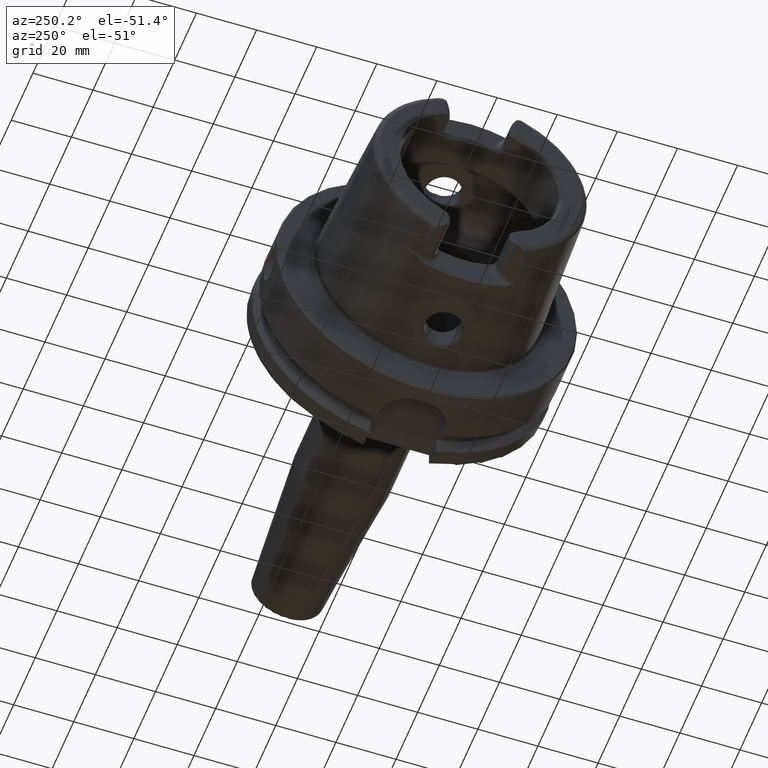
[diagram: clean part render]
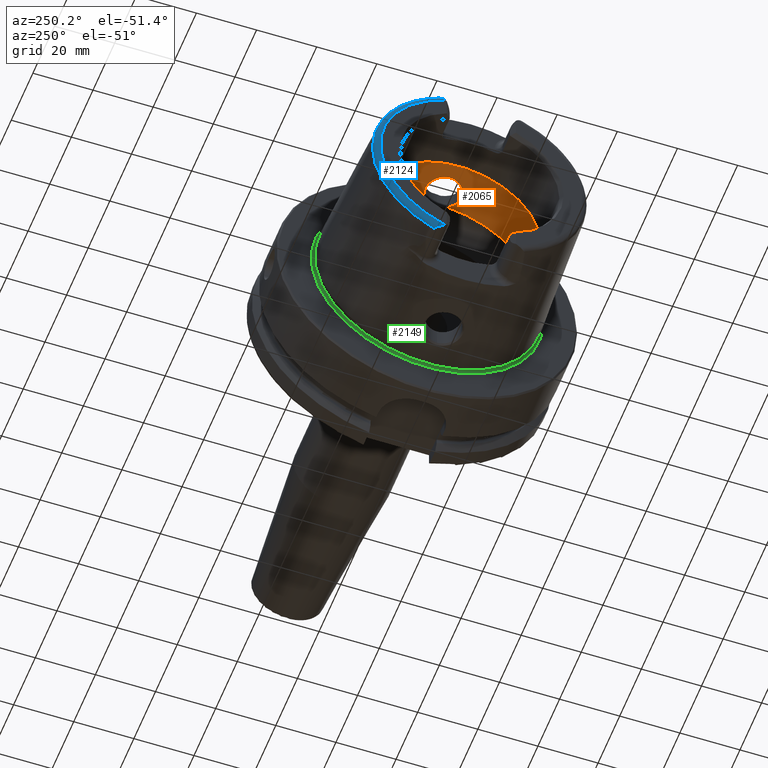
[diagram: same view with three faces highlighted in distinct colors, each labeled with its STEP entity id]
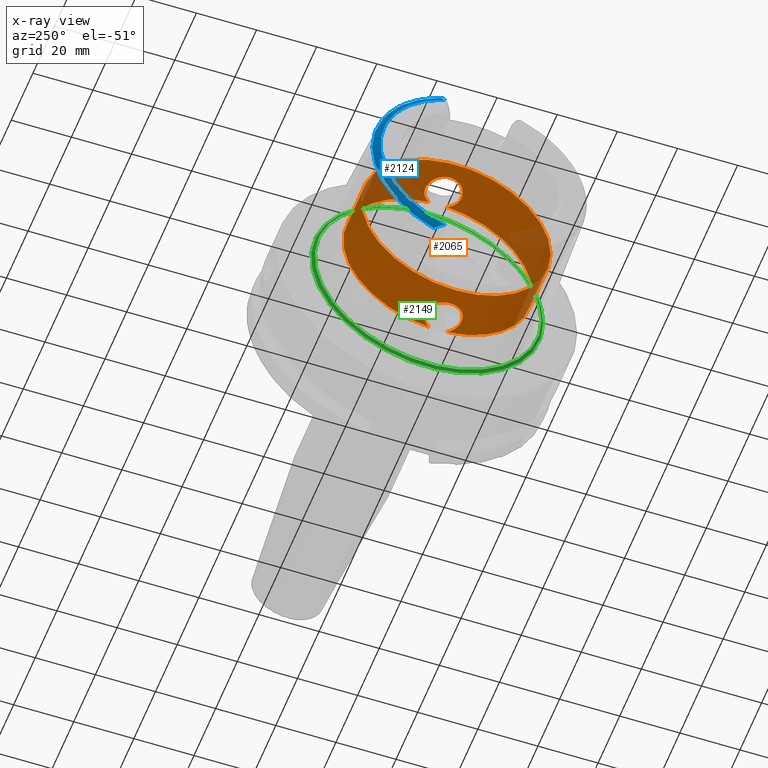
[diagram: x-ray of the same camera — body ghosted, the three highlighted faces saturated]
A machine part, auxiliary view with three faces highlighted in distinct colors.
The next image is the same camera in x-ray (body ghosted, the three faces saturated) — at least one of them is partly hidden behind the body in this view.
Their STEP definitions:

[orange] entity #2065 — the highlighted cylindrical surface (bore or boss wall) has radius 31.5 mm, axis along (-1, 0, 0).
#49=B_SPLINE_CURVE_WITH_KNOTS('',3,(#3687,#3688,#3689,#3690,#3691,#3692,
#3693,#3694,#3695,#3696,#3697,#3698,#3699,#3700,#3701,#3702,#3703,#3704,
#3705,#3706,#3707,#3708,#3709,#3710,#3711,#3712,#3713,#3714,#3715,#3716,
#3717),.UNSPECIFIED.,.F.,.F.,(4,2,2,2,2,2,2,2,2,2,2,3,2,2,4),(-2.42966289251045,
-2.26609494287567,-2.03948128472637,-1.81286762657707,-1.58625396842777,
-1.35964031027847,-1.1330370617835,-0.906433813288535,-0.679830564793567,
-0.453227316298599,-0.226613658149299,0.,0.2266136581493,0.453227316298599,
0.616795265988555),.UNSPECIFIED.);
#54=B_SPLINE_CURVE_WITH_KNOTS('',3,(#3879,#3880,#3881,#3882,#3883,#3884,
#3885,#3886,#3887,#3888,#3889,#3890,#3891,#3892,#3893,#3894,#3895,#3896,
#3897,#3898,#3899,#3900,#3901,#3902,#3903,#3904,#3905,#3906,#3907,#3908,
#3909),.UNSPECIFIED.,.F.,.F.,(4,2,2,3,2,2,2,2,2,2,2,2,2,2,4),(-0.616795265933374,
-0.453227316298598,-0.226613658149299,0.,0.2266136581493,0.453227316298599,
0.679830564793567,0.906433813288535,1.1330370617835,1.35964031027847,1.58625396842777,
1.81286762657707,2.03948128472637,2.26609494287567,2.42966289256562),
 .UNSPECIFIED.);
#188=CYLINDRICAL_SURFACE('',#2268,31.5);
#251=FACE_OUTER_BOUND('',#383,.T.);
#383=EDGE_LOOP('',(#1561,#1562,#1563,#1564,#1565,#1566,#1567,#1568,#1569));
#516=LINE('',#3925,#624);
#624=VECTOR('',#2681,31.5);
#738=CIRCLE('',#2269,31.5);
#739=CIRCLE('',#2270,31.5);
#740=CIRCLE('',#2271,31.5);
#741=CIRCLE('',#2272,31.5);
#742=CIRCLE('',#2273,31.5);
#918=VERTEX_POINT('',#3675);
#919=VERTEX_POINT('',#3686);
#922=VERTEX_POINT('',#3866);
#924=VERTEX_POINT('',#3878);
#925=VERTEX_POINT('',#3922);
#926=VERTEX_POINT('',#3924);
#927=VERTEX_POINT('',#3926);
#1158=EDGE_CURVE('',#919,#918,#49,.T.);
#1164=EDGE_CURVE('',#924,#922,#54,.T.);
#1167=EDGE_CURVE('',#925,#922,#738,.T.);
#1168=EDGE_CURVE('',#925,#926,#516,.T.);
#1169=EDGE_CURVE('',#926,#927,#739,.T.);
#1170=EDGE_CURVE('',#927,#926,#740,.T.);
#1171=EDGE_CURVE('',#919,#925,#741,.T.);
#1172=EDGE_CURVE('',#924,#918,#742,.T.);
#1561=ORIENTED_EDGE('',*,*,#1164,.T.);
#1562=ORIENTED_EDGE('',*,*,#1167,.F.);
#1563=ORIENTED_EDGE('',*,*,#1168,.T.);
#1564=ORIENTED_EDGE('',*,*,#1169,.T.);
#1565=ORIENTED_EDGE('',*,*,#1170,.T.);
#1566=ORIENTED_EDGE('',*,*,#1168,.F.);
#1567=ORIENTED_EDGE('',*,*,#1171,.F.);
#1568=ORIENTED_EDGE('',*,*,#1158,.T.);
#1569=ORIENTED_EDGE('',*,*,#1172,.F.);
#2065=ADVANCED_FACE('',(#251),#188,.F.);
#2268=AXIS2_PLACEMENT_3D('',#3921,#2677,#2678);
#2269=AXIS2_PLACEMENT_3D('',#3923,#2679,#2680);
#2270=AXIS2_PLACEMENT_3D('',#3927,#2682,#2683);
#2271=AXIS2_PLACEMENT_3D('',#3928,#2684,#2685);
#2272=AXIS2_PLACEMENT_3D('',#3929,#2686,#2687);
#2273=AXIS2_PLACEMENT_3D('',#3930,#2688,#2689);
#2677=DIRECTION('center_axis',(-1.,0.,0.));
#2678=DIRECTION('ref_axis',(0.,1.,0.));
#2679=DIRECTION('center_axis',(-1.,0.,0.));
#2680=DIRECTION('ref_axis',(0.,0.,1.));
#2681=DIRECTION('',(-1.,0.,0.));
#2682=DIRECTION('center_axis',(-1.,0.,0.));
#2683=DIRECTION('ref_axis',(0.,0.,1.));
#2684=DIRECTION('center_axis',(-1.,0.,0.));
#2685=DIRECTION('ref_axis',(0.,0.,1.));
#2686=DIRECTION('center_axis',(-1.,0.,0.));
#2687=DIRECTION('ref_axis',(0.,0.,1.));
#2688=DIRECTION('center_axis',(-1.,0.,0.));
#2689=DIRECTION('ref_axis',(0.,0.,1.));
#3675=CARTESIAN_POINT('',(-9.74679434480896,2.89893607109041,-31.3663222207471));
#3686=CARTESIAN_POINT('',(-9.74679434480896,-2.89893607109041,-31.3663222207471));
#3687=CARTESIAN_POINT('Ctrl Pts',(-9.74679434480898,-2.8989360710904,-31.3663222207471));
#3688=CARTESIAN_POINT('Ctrl Pts',(-10.0245557799842,-3.40227174537722,-31.3198029657389));
#3689=CARTESIAN_POINT('Ctrl Pts',(-10.3735944692601,-3.85887584349869,-31.2651415110221));
#3690=CARTESIAN_POINT('Ctrl Pts',(-11.289042660848,-4.77432403508655,-31.140708727458));
#3691=CARTESIAN_POINT('Ctrl Pts',(-11.9624834305428,-5.23577180141274,-31.0633803744766));
#3692=CARTESIAN_POINT('Ctrl Pts',(-13.4401908644727,-5.84865855662958,-30.9538382316308));
#3693=CARTESIAN_POINT('Ctrl Pts',(-14.2446211395023,-6.00000000000001,-30.9232921921325));
#3694=CARTESIAN_POINT('Ctrl Pts',(-15.7553788604977,-6.00000000000001,-30.9232921921325));
#3695=CARTESIAN_POINT('Ctrl Pts',(-16.5598091355273,-5.84865855662958,-30.9538382316308));
#3696=CARTESIAN_POINT('Ctrl Pts',(-18.0375165694572,-5.23577180141275,-31.0633803744766));
#3697=CARTESIAN_POINT('Ctrl Pts',(-18.710957339152,-4.77432403508655,-31.140708727458));
#3698=CARTESIAN_POINT('Ctrl Pts',(-19.7742996118461,-3.71098176239249,-31.2852440928545));
#3699=CARTESIAN_POINT('Ctrl Pts',(-20.2357665181958,-3.03753058698362,-31.3619556484746));
#3700=CARTESIAN_POINT('Ctrl Pts',(-20.8486671603361,-1.55978711209124,-31.4700797313679));
#3701=CARTESIAN_POINT('Ctrl Pts',(-21.,-0.755344161649895,-31.5));
#3702=CARTESIAN_POINT('Ctrl Pts',(-21.,0.755344161649892,-31.5));
#3703=CARTESIAN_POINT('Ctrl Pts',(-20.8486671603361,1.55978711209124,-31.4700797313679));
#3704=CARTESIAN_POINT('Ctrl Pts',(-20.2357665181958,3.03753058698362,-31.3619556484746));
#3705=CARTESIAN_POINT('Ctrl Pts',(-19.7742996118461,3.71098176239249,-31.2852440928545));
#3706=CARTESIAN_POINT('Ctrl Pts',(-18.710957339152,4.77432403508655,-31.140708727458));
#3707=CARTESIAN_POINT('Ctrl Pts',(-18.0375165694572,5.23577180141274,-31.0633803744766));
#3708=CARTESIAN_POINT('Ctrl Pts',(-16.5598091355273,5.84865855662958,-30.9538382316308));
#3709=CARTESIAN_POINT('Ctrl Pts',(-15.7553788604977,6.00000000000001,-30.9232921921325));
#3710=CARTESIAN_POINT('Ctrl Pts',(-15.,6.00000000000001,-30.9232921921325));
#3711=CARTESIAN_POINT('Ctrl Pts',(-14.2446211395023,6.00000000000001,-30.9232921921325));
#3712=CARTESIAN_POINT('Ctrl Pts',(-13.4401908644727,5.84865855662958,-30.9538382316308));
#3713=CARTESIAN_POINT('Ctrl Pts',(-11.9624834305428,5.23577180141274,-31.0633803744766));
#3714=CARTESIAN_POINT('Ctrl Pts',(-11.289042660848,4.77432403508655,-31.140708727458));
#3715=CARTESIAN_POINT('Ctrl Pts',(-10.3735944691306,3.85887584336922,-31.2651415110397));
#3716=CARTESIAN_POINT('Ctrl Pts',(-10.0245557801354,3.40227174565105,-31.3198029657135));
#3717=CARTESIAN_POINT('Ctrl Pts',(-9.74679434480898,2.8989360710904,-31.3663222207471));
#3866=CARTESIAN_POINT('',(-9.74679434480896,-2.89893607109042,31.3663222207471));
#3878=CARTESIAN_POINT('',(-9.74679434480896,2.89893607109042,31.3663222207471));
#3879=CARTESIAN_POINT('Ctrl Pts',(-9.74679434480897,2.89893607109041,31.3663222207471));
#3880=CARTESIAN_POINT('Ctrl Pts',(-10.0245557799842,3.40227174537723,31.3198029657389));
#3881=CARTESIAN_POINT('Ctrl Pts',(-10.3735944692601,3.85887584349869,31.2651415110221));
#3882=CARTESIAN_POINT('Ctrl Pts',(-11.289042660848,4.77432403508655,31.140708727458));
#3883=CARTESIAN_POINT('Ctrl Pts',(-11.9624834305428,5.23577180141274,31.0633803744766));
#3884=CARTESIAN_POINT('Ctrl Pts',(-13.4401908644727,5.84865855662958,30.9538382316308));
#3885=CARTESIAN_POINT('Ctrl Pts',(-14.2446211395023,6.00000000000001,30.9232921921325));
#3886=CARTESIAN_POINT('Ctrl Pts',(-15.,6.00000000000001,30.9232921921325));
#3887=CARTESIAN_POINT('Ctrl Pts',(-15.7553788604977,6.00000000000001,30.9232921921325));
#3888=CARTESIAN_POINT('Ctrl Pts',(-16.5598091355273,5.84865855662958,30.9538382316308));
#3889=CARTESIAN_POINT('Ctrl Pts',(-18.0375165694572,5.23577180141274,31.0633803744766));
#3890=CARTESIAN_POINT('Ctrl Pts',(-18.710957339152,4.77432403508655,31.140708727458));
#3891=CARTESIAN_POINT('Ctrl Pts',(-19.7742996118461,3.71098176239249,31.2852440928545));
#3892=CARTESIAN_POINT('Ctrl Pts',(-20.2357665181958,3.03753058698362,31.3619556484746));
#3893=CARTESIAN_POINT('Ctrl Pts',(-20.8486671603361,1.55978711209124,31.4700797313679));
#3894=CARTESIAN_POINT('Ctrl Pts',(-21.,0.755344161649892,31.5));
#3895=CARTESIAN_POINT('Ctrl Pts',(-21.,-0.755344161649894,31.5));
#3896=CARTESIAN_POINT('Ctrl Pts',(-20.8486671603361,-1.55978711209124,31.4700797313679));
#3897=CARTESIAN_POINT('Ctrl Pts',(-20.2357665181958,-3.03753058698362,31.3619556484746));
#3898=CARTESIAN_POINT('Ctrl Pts',(-19.7742996118461,-3.71098176239249,31.2852440928545));
#3899=CARTESIAN_POINT('Ctrl Pts',(-18.710957339152,-4.77432403508655,31.140708727458));
#3900=CARTESIAN_POINT('Ctrl Pts',(-18.0375165694572,-5.23577180141274,31.0633803744766));
#3901=CARTESIAN_POINT('Ctrl Pts',(-16.5598091355273,-5.84865855662958,30.9538382316308));
#3902=CARTESIAN_POINT('Ctrl Pts',(-15.7553788604977,-6.00000000000001,30.9232921921325));
#3903=CARTESIAN_POINT('Ctrl Pts',(-14.2446211395023,-6.00000000000001,30.9232921921325));
#3904=CARTESIAN_POINT('Ctrl Pts',(-13.4401908644727,-5.84865855662958,30.9538382316308));
#3905=CARTESIAN_POINT('Ctrl Pts',(-11.9624834305428,-5.23577180141274,31.0633803744766));
#3906=CARTESIAN_POINT('Ctrl Pts',(-11.289042660848,-4.77432403508655,31.140708727458));
#3907=CARTESIAN_POINT('Ctrl Pts',(-10.3735944691306,-3.85887584336922,31.2651415110397));
#3908=CARTESIAN_POINT('Ctrl Pts',(-10.0245557801353,-3.40227174565106,31.3198029657135));
#3909=CARTESIAN_POINT('Ctrl Pts',(-9.74679434480897,-2.89893607109041,31.3663222207471));
#3921=CARTESIAN_POINT('Origin',(-18.1430342013226,0.,0.));
#3922=CARTESIAN_POINT('',(-9.74679434480896,-31.5,3.85763741731416E-15));
#3923=CARTESIAN_POINT('Origin',(-9.74679434480896,0.,0.));
#3924=CARTESIAN_POINT('',(-26.5392740578363,-31.5,3.85763741731416E-15));
#3925=CARTESIAN_POINT('',(-18.1430342013226,-31.5,3.85763741731416E-15));
#3926=CARTESIAN_POINT('',(-26.5392740578363,-3.85763741731416E-15,-31.5));
#3927=CARTESIAN_POINT('Origin',(-26.5392740578363,0.,0.));
#3928=CARTESIAN_POINT('Origin',(-26.5392740578363,0.,0.));
#3929=CARTESIAN_POINT('Origin',(-9.74679434480896,0.,0.));
#3930=CARTESIAN_POINT('Origin',(-9.74679434480896,0.,0.));

[blue] entity #2124 — the highlighted toroidal blend (fillet) surface has major radius 33.6002 mm and minor (blend) radius 2 mm.
#31=B_SPLINE_CURVE_WITH_KNOTS('',3,(#3223,#3224,#3225,#3226,#3227,#3228,
#3229,#3230,#3231,#3232,#3233,#3234),.UNSPECIFIED.,.F.,.F.,(4,2,2,2,2,4),
(-0.744485085130335,-0.701284148098614,-0.656581713087918,-0.531183195108729,
-0.406814905045398,-0.320767863003946),.UNSPECIFIED.);
#36=B_SPLINE_CURVE_WITH_KNOTS('',3,(#3342,#3343,#3344,#3345,#3346,#3347,
#3348,#3349,#3350,#3351,#3352,#3353),.UNSPECIFIED.,.F.,.F.,(4,2,2,2,2,4),
(-0.33049294128038,-0.267730672592795,-0.15978363726818,-0.0785649842435549,
-0.0319753598823885,-6.79221864813266E-5),.UNSPECIFIED.);
#158=TOROIDAL_SURFACE('',#2385,33.6001839277785,2.);
#310=FACE_OUTER_BOUND('',#443,.T.);
#443=EDGE_LOOP('',(#1885,#1886,#1887,#1888));
#735=CIRCLE('',#2263,35.5976786130245);
#796=CIRCLE('',#2386,33.6001839277785);
#872=VERTEX_POINT('',#3220);
#873=VERTEX_POINT('',#3222);
#898=VERTEX_POINT('',#3332);
#899=VERTEX_POINT('',#3341);
#1099=EDGE_CURVE('',#873,#872,#31,.T.);
#1131=EDGE_CURVE('',#899,#898,#36,.T.);
#1150=EDGE_CURVE('',#873,#898,#735,.T.);
#1322=EDGE_CURVE('',#872,#899,#796,.T.);
#1885=ORIENTED_EDGE('',*,*,#1131,.T.);
#1886=ORIENTED_EDGE('',*,*,#1150,.F.);
#1887=ORIENTED_EDGE('',*,*,#1099,.T.);
#1888=ORIENTED_EDGE('',*,*,#1322,.T.);
#2124=ADVANCED_FACE('',(#310),#158,.T.);
#2263=AXIS2_PLACEMENT_3D('',#3610,#2664,#2665);
#2385=AXIS2_PLACEMENT_3D('',#4541,#2967,#2968);
#2386=AXIS2_PLACEMENT_3D('',#4542,#2969,#2970);
#2664=DIRECTION('center_axis',(1.,0.,0.));
#2665=DIRECTION('ref_axis',(0.,0.,-1.));
#2967=DIRECTION('center_axis',(1.,0.,0.));
#2968=DIRECTION('ref_axis',(0.,0.,-1.));
#2969=DIRECTION('center_axis',(1.,0.,0.));
#2970=DIRECTION('ref_axis',(0.,0.,-1.));
#3220=CARTESIAN_POINT('',(-50.,12.0743049948301,-31.355757348091));
#3222=CARTESIAN_POINT('',(-48.1000748840304,15.0787152148571,-32.2463497175327));
#3223=CARTESIAN_POINT('Ctrl Pts',(-48.1000748840304,15.0787152148571,-32.2463497175327));
#3224=CARTESIAN_POINT('Ctrl Pts',(-48.2105289331959,15.0644723890649,-32.2469009162952));
#3225=CARTESIAN_POINT('Ctrl Pts',(-48.3152849211513,15.0274043790922,-32.2483365520296));
#3226=CARTESIAN_POINT('Ctrl Pts',(-48.5158350355592,14.9227249886344,-32.2501807122049));
#3227=CARTESIAN_POINT('Ctrl Pts',(-48.6114759122293,14.853948633775,-32.2504380099703));
#3228=CARTESIAN_POINT('Ctrl Pts',(-48.9444340259589,14.5699075364914,-32.2439932048825));
#3229=CARTESIAN_POINT('Ctrl Pts',(-49.1873237794489,14.2618237213855,-32.2229124522755));
#3230=CARTESIAN_POINT('Ctrl Pts',(-49.6096022065355,13.5557805634606,-32.0777680620402));
#3231=CARTESIAN_POINT('Ctrl Pts',(-49.7790094341757,13.1775605707035,-31.9575317726829));
#3232=CARTESIAN_POINT('Ctrl Pts',(-49.9573633441756,12.558596693048,-31.6661869684752));
#3233=CARTESIAN_POINT('Ctrl Pts',(-50.,12.3094122367882,-31.5218463066117));
#3234=CARTESIAN_POINT('Ctrl Pts',(-50.,12.0743049948301,-31.355757348091));
#3332=CARTESIAN_POINT('',(-48.1000748840304,15.0787152148571,32.2463497175327));
#3341=CARTESIAN_POINT('',(-50.,12.0743049948301,31.355757348091));
#3342=CARTESIAN_POINT('Ctrl Pts',(-50.,12.0743049948301,31.355757348091));
#3343=CARTESIAN_POINT('Ctrl Pts',(-50.,12.2864160042027,31.5056008677719));
#3344=CARTESIAN_POINT('Ctrl Pts',(-49.965181241452,12.5182840828266,31.6438016135975));
#3345=CARTESIAN_POINT('Ctrl Pts',(-49.780095292634,13.1934814711235,31.9701190766011));
#3346=CARTESIAN_POINT('Ctrl Pts',(-49.5793805506892,13.6220310736955,32.097613465566));
#3347=CARTESIAN_POINT('Ctrl Pts',(-49.170216000735,14.274989330902,32.2194840260055));
#3348=CARTESIAN_POINT('Ctrl Pts',(-48.9762638716764,14.5215824129494,32.2396097025416));
#3349=CARTESIAN_POINT('Ctrl Pts',(-48.6666306582889,14.8133702905837,32.2505591140316));
#3350=CARTESIAN_POINT('Ctrl Pts',(-48.5389792055844,14.9127554064334,32.2504492219699));
#3351=CARTESIAN_POINT('Ctrl Pts',(-48.3058528414878,15.0307034754738,32.2482068363322));
#3352=CARTESIAN_POINT('Ctrl Pts',(-48.2055479344945,15.0651146787529,32.2468760596209));
#3353=CARTESIAN_POINT('Ctrl Pts',(-48.1000748840303,15.0787152148571,32.2463497175327));
#3610=CARTESIAN_POINT('Origin',(-48.1000748840304,0.,0.));
#4541=CARTESIAN_POINT('Origin',(-48.,0.,0.));
#4542=CARTESIAN_POINT('Origin',(-50.,0.,0.));

[green] entity #2149 — the highlighted toroidal blend (fillet) surface has major radius 38.5073 mm and minor (blend) radius 0.8 mm.
#164=TOROIDAL_SURFACE('',#2440,38.5073016032064,0.8);
#335=FACE_OUTER_BOUND('',#472,.T.);
#472=EDGE_LOOP('',(#2004,#2005,#2006,#2007,#2008,#2009));
#813=CIRCLE('',#2416,38.6186400839745);
#814=CIRCLE('',#2417,38.6186400839745);
#824=CIRCLE('',#2438,37.7073016032064);
#825=CIRCLE('',#2439,37.7073016032064);
#826=CIRCLE('',#2441,0.8);
#1031=VERTEX_POINT('',#4590);
#1032=VERTEX_POINT('',#4591);
#1036=VERTEX_POINT('',#4620);
#1037=VERTEX_POINT('',#4621);
#1344=EDGE_CURVE('',#1031,#1032,#813,.T.);
#1345=EDGE_CURVE('',#1032,#1031,#814,.T.);
#1358=EDGE_CURVE('',#1036,#1037,#824,.T.);
#1360=EDGE_CURVE('',#1037,#1036,#825,.T.);
#1361=EDGE_CURVE('',#1037,#1032,#826,.T.);
#2004=ORIENTED_EDGE('',*,*,#1358,.T.);
#2005=ORIENTED_EDGE('',*,*,#1361,.T.);
#2006=ORIENTED_EDGE('',*,*,#1344,.F.);
#2007=ORIENTED_EDGE('',*,*,#1345,.F.);
#2008=ORIENTED_EDGE('',*,*,#1361,.F.);
#2009=ORIENTED_EDGE('',*,*,#1360,.T.);
#2149=ADVANCED_FACE('',(#335),#164,.F.);
#2416=AXIS2_PLACEMENT_3D('',#4592,#3034,#3035);
#2417=AXIS2_PLACEMENT_3D('',#4593,#3036,#3037);
#2438=AXIS2_PLACEMENT_3D('',#4622,#3081,#3082);
#2439=AXIS2_PLACEMENT_3D('',#4624,#3084,#3085);
#2440=AXIS2_PLACEMENT_3D('',#4625,#3086,#3087);
#2441=AXIS2_PLACEMENT_3D('',#4626,#3088,#3089);
#3034=DIRECTION('center_axis',(1.,0.,0.));
#3035=DIRECTION('ref_axis',(0.,0.,-1.));
#3036=DIRECTION('center_axis',(1.,0.,0.));
#3037=DIRECTION('ref_axis',(0.,0.,-1.));
#3081=DIRECTION('center_axis',(1.,0.,0.));
#3082=DIRECTION('ref_axis',(0.,0.,-1.));
#3084=DIRECTION('center_axis',(1.,0.,0.));
#3085=DIRECTION('ref_axis',(0.,0.,-1.));
#3086=DIRECTION('center_axis',(1.,0.,0.));
#3087=DIRECTION('ref_axis',(0.,0.,-1.));
#3088=DIRECTION('center_axis',(0.,-1.,-1.22464679914735E-16));
#3089=DIRECTION('ref_axis',(0.,-1.22464679914735E-16,1.));
#4590=CARTESIAN_POINT('',(0.0922144549932558,-38.6186400839745,-4.7294193966263E-15));
#4591=CARTESIAN_POINT('',(0.0922144549932559,-4.7294193966263E-15,38.6186400839745));
#4592=CARTESIAN_POINT('Origin',(0.0922144549932559,0.,0.));
#4593=CARTESIAN_POINT('Origin',(0.0922144549932559,0.,0.));
#4620=CARTESIAN_POINT('',(-0.7,-37.7073016032064,-4.61781262128506E-15));
#4621=CARTESIAN_POINT('',(-0.7,-4.61781262128506E-15,37.7073016032064));
#4622=CARTESIAN_POINT('Origin',(-0.7,0.,0.));
#4624=CARTESIAN_POINT('Origin',(-0.7,0.,0.));
#4625=CARTESIAN_POINT('Origin',(-0.7,0.,0.));
#4626=CARTESIAN_POINT('Origin',(-0.7,-4.71578436521685E-15,38.5073016032064));